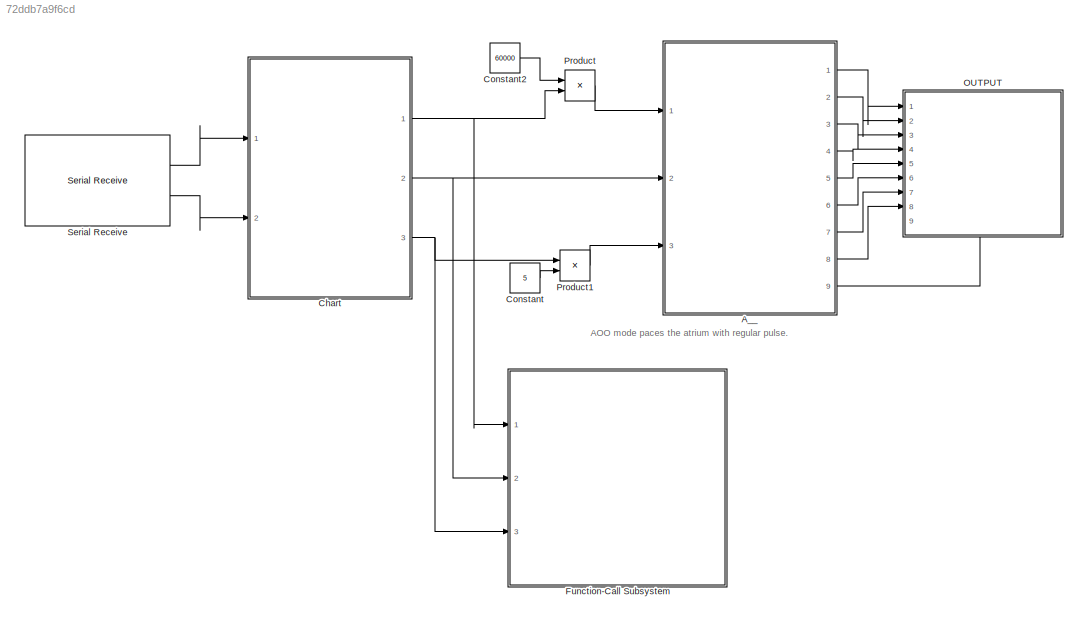
MODEL slx_72ddb7a9f6cd
KIND model
CONFIG AbsTol = auto
CONFIG EnableMultiTasking = on
CONFIG FixedStep = 1e-3
CONFIG MaxStep = auto
CONFIG MinStep = auto
CONFIG RelTol = 1e-3
CONFIG SampleTimeConstraint = Unconstrained
CONFIG Solver = FixedStepAuto
CONFIG SolverName = FixedStepAuto
CONFIG StartTime = 0.0
CONFIG StopTime = 1
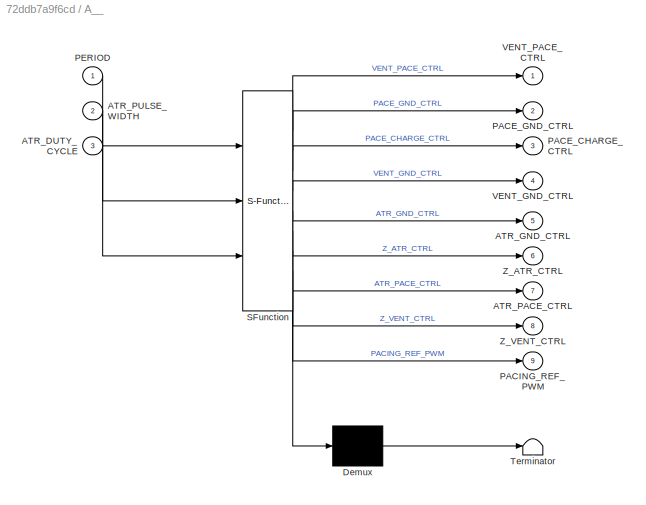
BLOCK [SubSystem] A__
  ErrorFcn = Stateflow.Translate.translate
  PermitHierarchicalResolution = ExplicitOnly
  Ports = [3, 9]
  RequestExecContextInheritance = off
  SFBlockType = Chart
  TreatAsAtomicUnit = on
BLOCK [Demux] A__/ Demux 
  Outputs = 1
  Ports = [1, 1]
BLOCK [S-Function] A__/ SFunction 
  EnableBusSupport = on
  FunctionName = sf_sfun
  PortCounts = [3 10]
  Ports = [3, 10]
  SFcnIsStateOwnerBlock = off
  SFunctionDeploymentMode = off
  Tag = Stateflow S-Function 3
BLOCK [Terminator] A__/ Terminator 
BLOCK [Inport] A__/ATR_DUTY_CYCLE
  Port = 3
BLOCK [Outport] A__/ATR_GND_CTRL
  Port = 5
BLOCK [Outport] A__/ATR_PACE_CTRL
  Port = 7
BLOCK [Inport] A__/ATR_PULSE_WIDTH
  Port = 2
BLOCK [Outport] A__/PACE_CHARGE_CTRL
  Port = 3
BLOCK [Outport] A__/PACE_GND_CTRL
  Port = 2
BLOCK [Outport] A__/PACING_REF_PWM
  Port = 9
BLOCK [Inport] A__/PERIOD
BLOCK [Outport] A__/VENT_GND_CTRL
  Port = 4
BLOCK [Outport] A__/VENT_PACE_CTRL
BLOCK [Outport] A__/Z_ATR_CTRL
  Port = 6
BLOCK [Outport] A__/Z_VENT_CTRL
  Port = 8
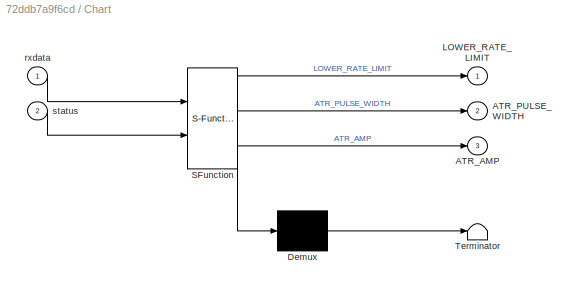
BLOCK [SubSystem] Chart
  ErrorFcn = Stateflow.Translate.translate
  PermitHierarchicalResolution = ExplicitOnly
  Ports = [2, 3]
  RequestExecContextInheritance = off
  SFBlockType = Chart
  TreatAsAtomicUnit = on
BLOCK [Demux] Chart/ Demux 
  Outputs = 1
  Ports = [1, 1]
BLOCK [S-Function] Chart/ SFunction 
  EnableBusSupport = on
  FunctionName = sf_sfun
  PortCounts = [2 4]
  Ports = [2, 4]
  SFcnIsStateOwnerBlock = off
  SFunctionDeploymentMode = off
  Tag = Stateflow S-Function 1
BLOCK [Terminator] Chart/ Terminator 
BLOCK [Outport] Chart/ATR_AMP
  Port = 3
BLOCK [Outport] Chart/ATR_PULSE_WIDTH
  Port = 2
BLOCK [Outport] Chart/LOWER_RATE_LIMIT
BLOCK [Inport] Chart/rxdata
BLOCK [Inport] Chart/status
  Port = 2
BLOCK [Constant] Constant
  Value = 5
BLOCK [Constant] Constant2
  Value = 60000
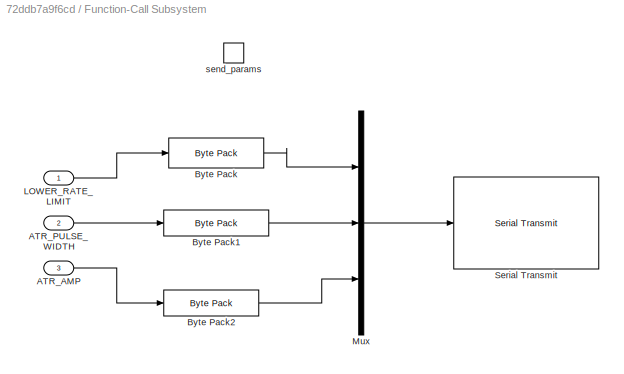
BLOCK [SubSystem] Function-Call Subsystem
  Ports = [3, 0, 0, 1]
  RequestExecContextInheritance = off
  TreatAsAtomicUnit = on
BLOCK [Inport] Function-Call Subsystem/ATR_AMP
  OutDataTypeStr = double
  Port = 3
BLOCK [Inport] Function-Call Subsystem/ATR_PULSE_WIDTH
  OutDataTypeStr = uint16
  Port = 2
BLOCK [Reference] Function-Call Subsystem/Byte Pack  REF=etargetslib/Byte Pack
  Ports = [1, 1]
  SourceBlock = etargetslib/Byte Pack
  SourceProductBaseCode = ME
  SourceType = Byte pack
BLOCK [Reference] Function-Call Subsystem/Byte Pack1  REF=etargetslib/Byte Pack
  Ports = [1, 1]
  SourceBlock = etargetslib/Byte Pack
  SourceProductBaseCode = ME
  SourceType = Byte pack
BLOCK [Reference] Function-Call Subsystem/Byte Pack2  REF=etargetslib/Byte Pack
  Ports = [1, 1]
  SourceBlock = etargetslib/Byte Pack
  SourceProductBaseCode = ME
  SourceType = Byte pack
BLOCK [Inport] Function-Call Subsystem/LOWER_RATE_LIMIT
  OutDataTypeStr = uint16
BLOCK [Mux] Function-Call Subsystem/Mux
  DisplayOption = bar
  Inputs = 3
  Ports = [3, 1]
BLOCK [Reference] Function-Call Subsystem/Serial Transmit  REF=frdmk64flib/Serial Transmit
  Ports = [1]
  SourceBlock = frdmk64flib/Serial Transmit
  SourceProductBaseCode = EC_FRDM_K64F
  SourceType = freedomk64f.SCIWrite
BLOCK [TriggerPort] Function-Call Subsystem/send_params
  FunctionName = send_params
  IsSimulinkFunction = on
  Ports = []
  StatesWhenEnabling = held
  TriggerType = function-call
  VariantControl = Variant
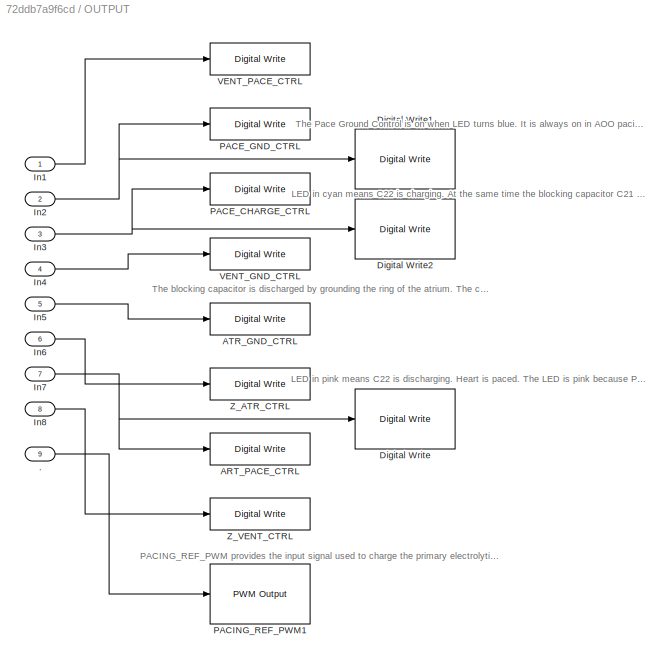
BLOCK [SubSystem] OUTPUT
  PortSchema = {"entries":[{"content":{"sides":[{"content":{"connectorIds":["In1","In2","In3","In4","In5","In6","In7","In8"]},"type":"ConnectorPlacement.EquallySpacedRectSide","uuid":"50e254ca-649e-457a-a1c0-3970395998e3"},{"content":{"connectorIds":[],"side":"RIGHT"},"type":"ConnectorPlacement.EquallySpacedRectSide","uuid":"d7670675-e925-444e-9580-d2b53e4df198"},{"content":{"connectorIds":[],"side":"TOP"},"type...<+427ch>
  Ports = [9]
  RequestExecContextInheritance = off
BLOCK [Inport] OUTPUT/.
  Port = 9
BLOCK [Reference] OUTPUT/ART_PACE_CTRL  REF=frdmk64flib/Digital Write
  Ports = [1]
  SourceBlock = frdmk64flib/Digital Write
  SourceProductBaseCode = EC_FRDM_K64F
  SourceType = freedomk64f.DigitalWrite
BLOCK [Reference] OUTPUT/ATR_GND_CTRL  REF=frdmk64flib/Digital Write
  Ports = [1]
  SourceBlock = frdmk64flib/Digital Write
  SourceProductBaseCode = EC_FRDM_K64F
  SourceType = freedomk64f.DigitalWrite
BLOCK [Reference] OUTPUT/Digital Write  REF=frdmk64flib/Digital Write
  Ports = [1]
  SourceBlock = frdmk64flib/Digital Write
  SourceProductBaseCode = EC_FRDM_K64F
  SourceType = freedomk64f.DigitalWrite
BLOCK [Reference] OUTPUT/Digital Write1  REF=frdmk64flib/Digital Write
  Ports = [1]
  SourceBlock = frdmk64flib/Digital Write
  SourceProductBaseCode = EC_FRDM_K64F
  SourceType = freedomk64f.DigitalWrite
BLOCK [Reference] OUTPUT/Digital Write2  REF=frdmk64flib/Digital Write
  Ports = [1]
  SourceBlock = frdmk64flib/Digital Write
  SourceProductBaseCode = EC_FRDM_K64F
  SourceType = freedomk64f.DigitalWrite
BLOCK [Inport] OUTPUT/In1
BLOCK [Inport] OUTPUT/In2
  Port = 2
BLOCK [Inport] OUTPUT/In3
  Port = 3
BLOCK [Inport] OUTPUT/In4
  Port = 4
BLOCK [Inport] OUTPUT/In5
  Port = 5
BLOCK [Inport] OUTPUT/In6
  Port = 6
BLOCK [Inport] OUTPUT/In7
  Port = 7
BLOCK [Inport] OUTPUT/In8
  Port = 8
BLOCK [Reference] OUTPUT/PACE_CHARGE_CTRL  REF=frdmk64flib/Digital Write
  Ports = [1]
  SourceBlock = frdmk64flib/Digital Write
  SourceProductBaseCode = EC_FRDM_K64F
  SourceType = freedomk64f.DigitalWrite
BLOCK [Reference] OUTPUT/PACE_GND_CTRL  REF=frdmk64flib/Digital Write
  Ports = [1]
  SourceBlock = frdmk64flib/Digital Write
  SourceProductBaseCode = EC_FRDM_K64F
  SourceType = freedomk64f.DigitalWrite
BLOCK [Reference] OUTPUT/PACING_REF_PWM1  REF=frdmk64flib/PWM Output
  Ports = [1]
  SourceBlock = frdmk64flib/PWM Output
  SourceProductBaseCode = EC_FRDM_K64F
  SourceType = freedomk64f.PWMOutput
BLOCK [Reference] OUTPUT/VENT_GND_CTRL  REF=frdmk64flib/Digital Write
  Ports = [1]
  SourceBlock = frdmk64flib/Digital Write
  SourceProductBaseCode = EC_FRDM_K64F
  SourceType = freedomk64f.DigitalWrite
BLOCK [Reference] OUTPUT/VENT_PACE_CTRL  REF=frdmk64flib/Digital Write
  Ports = [1]
  SourceBlock = frdmk64flib/Digital Write
  SourceProductBaseCode = EC_FRDM_K64F
  SourceType = freedomk64f.DigitalWrite
BLOCK [Reference] OUTPUT/Z_ATR_CTRL  REF=frdmk64flib/Digital Write
  Ports = [1]
  SourceBlock = frdmk64flib/Digital Write
  SourceProductBaseCode = EC_FRDM_K64F
  SourceType = freedomk64f.DigitalWrite
BLOCK [Reference] OUTPUT/Z_VENT_CTRL  REF=frdmk64flib/Digital Write
  Ports = [1]
  SourceBlock = frdmk64flib/Digital Write
  SourceProductBaseCode = EC_FRDM_K64F
  SourceType = freedomk64f.DigitalWrite
BLOCK [Product] Product
  Inputs = */
  OutDataTypeStr = uint16
  Ports = [2, 1]
BLOCK [Product] Product1
  Inputs = */
  Ports = [2, 1]
BLOCK [Reference] Serial Receive  REF=frdmk64flib/Serial Receive
  Ports = [0, 2]
  SourceBlock = frdmk64flib/Serial Receive
  SourceProductBaseCode = EC_FRDM_K64F
  SourceType = freedomk64f.SCIRead
ANNOTATION (root): AOO mode paces the atrium with regular pulse.
ANNOTATION OUTPUT: LED in cyan means C22 is charging. At the same time the blocking capacitor C21 is discharging. (Cyan=Green+Blue)
ANNOTATION OUTPUT: LED in pink means C22 is discharging. Heart is paced. The LED is pink because PACE_GND_CRTL is always on. (Red+Blue=Pink)
ANNOTATION OUTPUT: PACING_REF_PWM provides the input signal used to charge the primary electrolytic capacitor C22 along with the help of PACE_CHARGE_CTRL. The input of this block is the duty cycle, which determines the amplitude of the pulse.
ANNOTATION OUTPUT: The Pace Ground Control is on when LED turns blue. It is always on in AOO pacing.
ANNOTATION OUTPUT: The blocking capacitor is discharged by grounding the ring of the atrium. The charge built up by the pacing current is now balanced out.
LINE A__:1 -> OUTPUT:1
LINE A__:2 -> OUTPUT:2
LINE A__:3 -> OUTPUT:3
LINE A__:4 -> OUTPUT:4
LINE A__:5 -> OUTPUT:5
LINE A__:6 -> OUTPUT:6
LINE A__:7 -> OUTPUT:7
LINE A__:8 -> OUTPUT:8
LINE A__:9 -> OUTPUT:9
NET Chart:1 -> Function-Call Subsystem:1, Product:2
NET Chart:2 -> A__:2, Function-Call Subsystem:2
NET Chart:3 -> Function-Call Subsystem:3, Product1:1
LINE Constant2:1 -> Product:1
LINE Constant:1 -> Product1:2
LINE Function-Call Subsystem/ATR_AMP:1 -> Function-Call Subsystem/Byte Pack2:1
LINE Function-Call Subsystem/ATR_PULSE_WIDTH:1 -> Function-Call Subsystem/Byte Pack1:1
LINE Function-Call Subsystem/Byte Pack1:1 -> Function-Call Subsystem/Mux:2
LINE Function-Call Subsystem/Byte Pack2:1 -> Function-Call Subsystem/Mux:3
LINE Function-Call Subsystem/Byte Pack:1 -> Function-Call Subsystem/Mux:1
LINE Function-Call Subsystem/LOWER_RATE_LIMIT:1 -> Function-Call Subsystem/Byte Pack:1
LINE Function-Call Subsystem/Mux:1 -> Function-Call Subsystem/Serial Transmit:1
LINE OUTPUT/.:1 -> OUTPUT/PACING_REF_PWM1:1
LINE OUTPUT/In1:1 -> OUTPUT/VENT_PACE_CTRL:1
NET OUTPUT/In2:1 -> OUTPUT/Digital Write1:1, OUTPUT/PACE_GND_CTRL:1
NET OUTPUT/In3:1 -> OUTPUT/Digital Write2:1, OUTPUT/PACE_CHARGE_CTRL:1
LINE OUTPUT/In4:1 -> OUTPUT/VENT_GND_CTRL:1
LINE OUTPUT/In5:1 -> OUTPUT/ATR_GND_CTRL:1
LINE OUTPUT/In6:1 -> OUTPUT/Z_ATR_CTRL:1
NET OUTPUT/In7:1 -> OUTPUT/ART_PACE_CTRL:1, OUTPUT/Digital Write:1
LINE OUTPUT/In8:1 -> OUTPUT/Z_VENT_CTRL:1
LINE Product1:1 -> A__:3
LINE Product:1 -> A__:1
LINE Serial Receive:1 -> Chart:1
LINE Serial Receive:2 -> Chart:2
note: NET lines group one-source signal fan-out (src -> all destinations, sorted); 1:1 wires keep LINE
CHART Chart states=4 transitions=9
  STATE_LABEL "SET_PARAM\nentry:\nLOWER_RATE_LIMIT = typecast(rxdata(3:4),'uint16');\nATR_PULSE_WIDTH = typecast(rxdata(5:6),'uint16');\nATR_AMP = typecast(rxdata(7:14),'double');"
  STATE_LABEL 'INITIAL\n%Set the initial values of paprameters\nentry:\nLOWER_RATE_LIMIT = 60;\nATR_PULSE_WIDTH = 10;\nATR_AMP = 4;'
  STATE_LABEL 'STANDBY\n%Waiting for COM'
  STATE_LABEL 'ECHO_PARAM\n%Sends back the currrent value of the parameters\nentry:\nsend_params();'
CHART A__ states=2 transitions=3
  STATE_LABEL 'Pace\nentry:\nPACE_CHARGE_CTRL = false;\nPACE_GND_CTRL = true;\nVENT_PACE_CTRL = false;\nVENT_GND_CTRL = false;\nZ_VENT_CTRL = false;\nZ_ATR_CTRL = false;\nATR_GND_CTRL = false;\nATR_PACE_CTRL = true;\n%C22 Discharge -> Pace Atrium -> C21 Saturated'
  STATE_LABEL 'Charge\nentry:\nPACE_GND_CTRL = true;\nATR_PACE_CTRL = false;\nZ_VENT_CTRL = false;\nZ_ATR_CTRL = false;\nVENT_GND_CTRL = false;\nATR_GND_CTRL = true;\n%Discharging C21\nVENT_PACE_CTRL = false;\nATR_PACE_CTRL = false;\nPACING_REF_PWM = ATR_DUTY_CYCLE;\nPACE_CHARGE_CTRL = true;\n%Charging Primary Capacitor (C22)\n'
CHART  states=0 transitions=0
CHART  states=0 transitions=0
